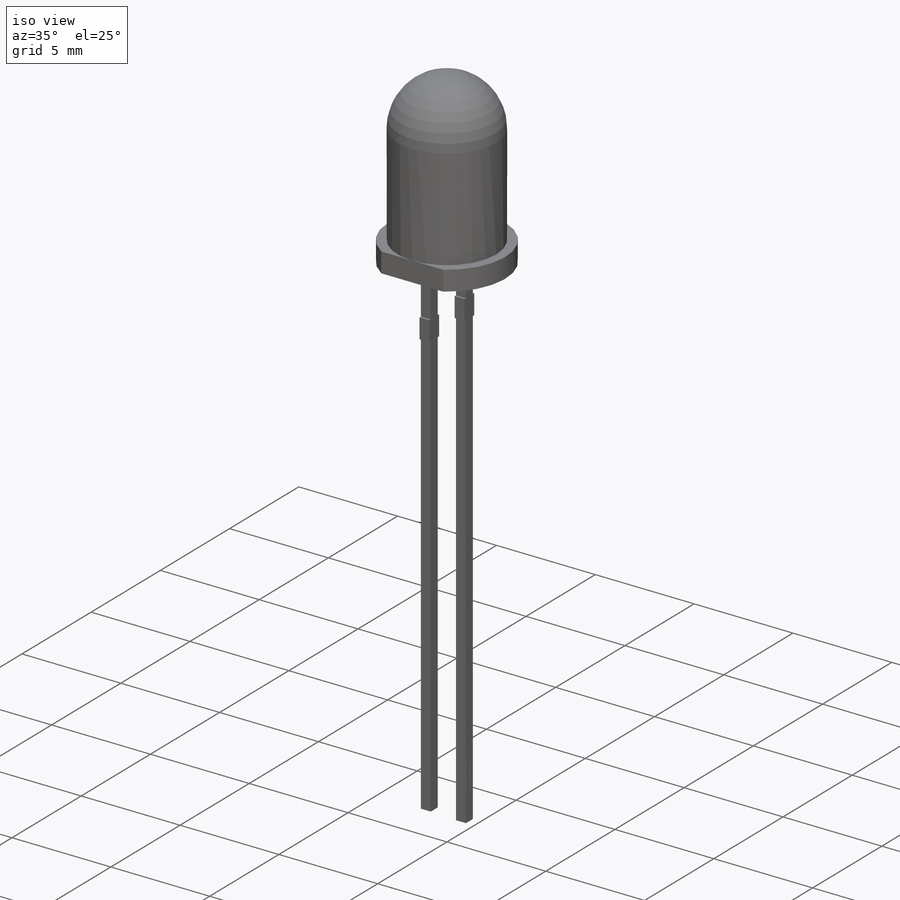
[diagram: iso view]
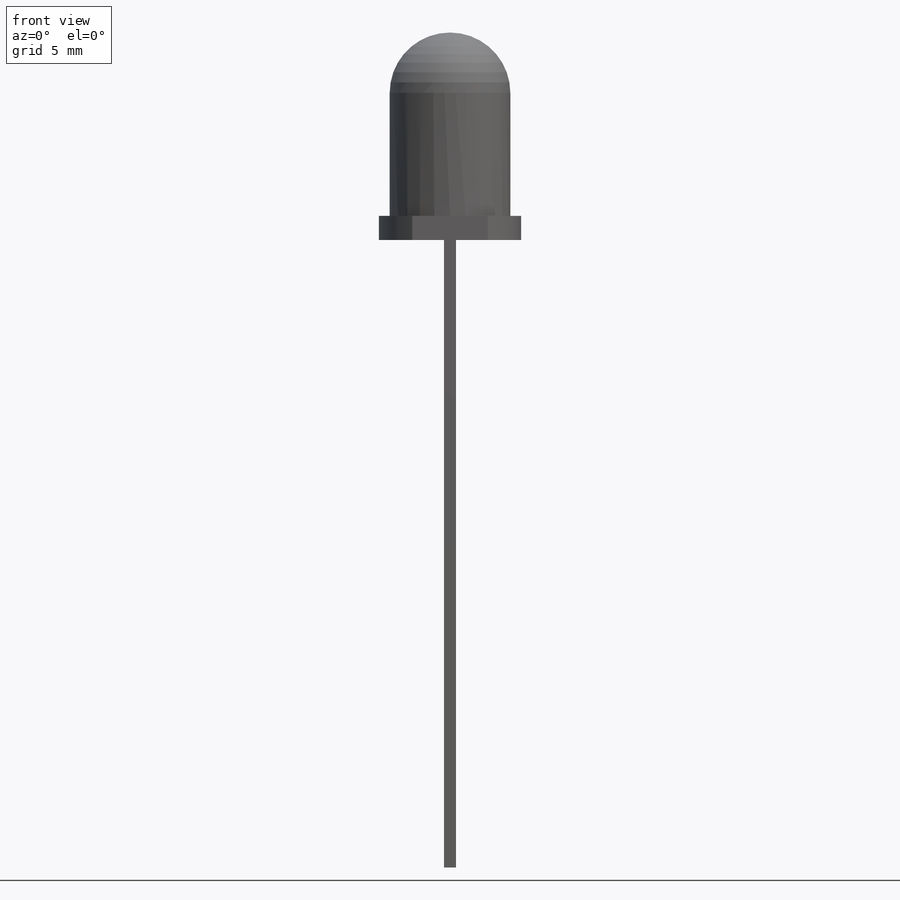
[diagram: front view]
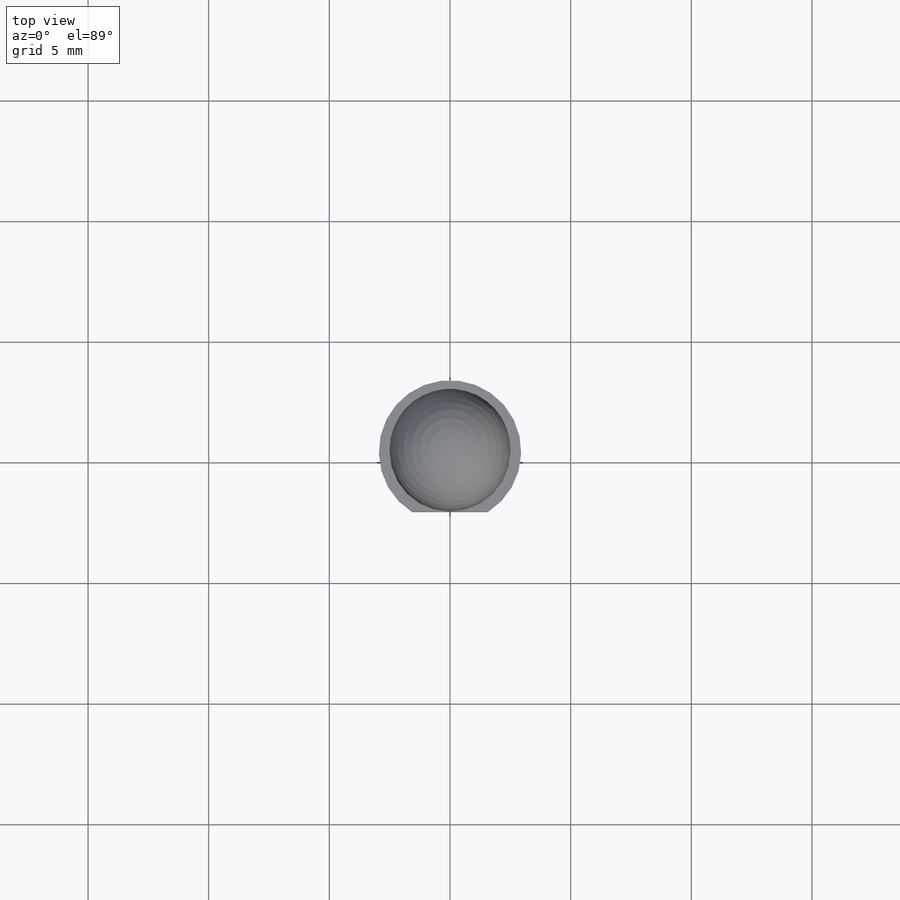
[diagram: top view]
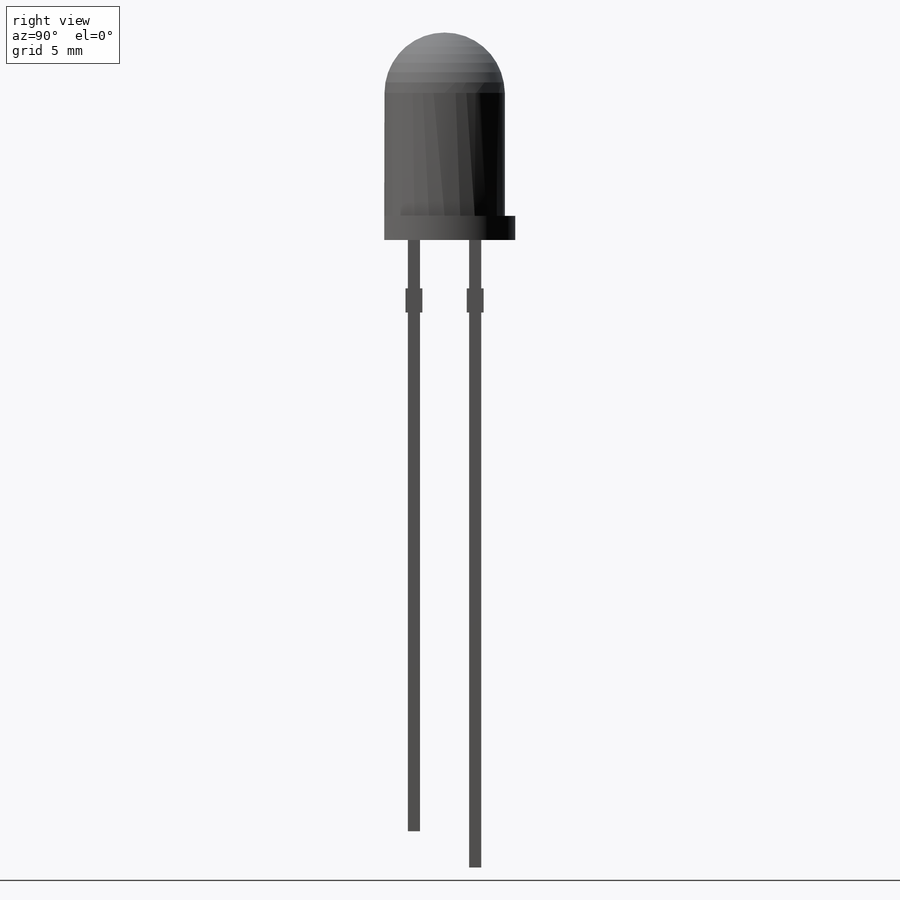
[diagram: right view]
SOLIDWORKS PART (.sldprt)
format: sldprt  version: not decoded by parser v0  size: 492,544 bytes
history: native  units: mm
features: sketch x4, extrude x2, material x1, revolve x1, plane x1, cut_extrude x1 (+11 scaffold rows collapsed)
feature tree (21):
  scaffold x11  (default folders/planes/origin — collapsed)
  material  "Material <not specified>"
  sketch  "Sketch1"  dims[c1.D3=5.0mm c1.D4=2.0mm c1.D1=2.5mm c1.D2=7.6mm c2.D4=4.5mm]
  revolve  "Revolve1"  Angle=360deg
  plane  "Plane1"  Offset=1mm
  sketch  "Sketch2"  dims[D1=5.9mm]
  extrude  "Extrude1"  [1 undecoded]
  sketch  "Sketch3"  dims[c1.D1=26.0mm c1.D2=1.5mm c1.D3=0.5mm c1.D4=2.54mm c1.D5=~1.282023mm c2.D5=90.0deg c3.D5=0.7mm c3.D6=1.0mm c3.D7=10.6mm]
  extrude  "Extrude2"  Depth=0.5mm
  sketch  "Sketch4"  dims[D1=~2.775051mm]
  cut_extrude  "Cut-Extrude1"  Depth=0.01mm
decode coverage: 7 of 8 modeling features carry decoded parameters
note: ~ marks probable driven/reference dimensions
note: 1 parameter value undecoded
note: suppression state not decoded; provenance and decode notes live in map.json
